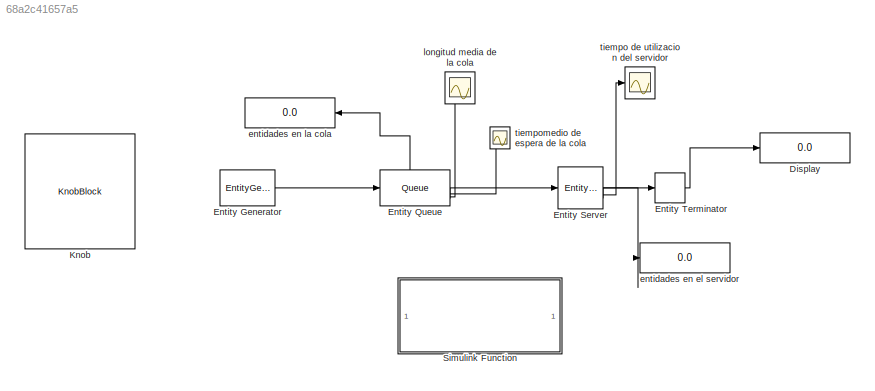
MODEL slx_68a2c41657a5
KIND model
CONFIG AbsTol = auto
CONFIG EnableMultiTasking = off
CONFIG FixedStep = auto
CONFIG MaxStep = auto
CONFIG MinStep = auto
CONFIG RelTol = 1e-3
CONFIG SampleTimeConstraint = Unconstrained
CONFIG SolverName = VariableStepAuto
CONFIG StartTime = 0.0
CONFIG StopTime = 50
BLOCK [Display] Display
  Decimation = 1
BLOCK [EntityGenerator] Entity Generator
  EntityType = Structured
  EntityTypeName = Entity
  IntergenerationTimeAction = dt = llegadaExponencial();
  OutputPortMap = o3
  OutputPortMessageModes = m
  TimeSource = MATLAB action
BLOCK [Queue] Entity Queue
  AverageQueueLength = on
  AverageWait = on
  Capacity = 500
  InputPortMap = u0
  InputPortMessageModes = m
  NumberEntitiesInBlock = on
  OutputPortMap = o1,o2,o3,o5
  OutputPortMessageModes = n,n,n,m
BLOCK [EntityServer] Entity Server
  Capacity = 1
  InputPortMap = u2
  InputPortMessageModes = m
  NumberEntitiesInBlock = on
  OutputPortMap = o1,o5,o9
  OutputPortMessageModes = n,n,m
  ServiceTimeAction = media = 1\ndt = -media*log(1-rand());
  ServiceTimeSource = MATLAB action
  Utilization = on
BLOCK [EntityTerminator] Entity Terminator
  InputPortMap = u0
  InputPortMessageModes = m
  NumberEntitiesArrived = on
  OutputPortMap = o0
BLOCK [KnobBlock] Knob
  ScaleMax = 1
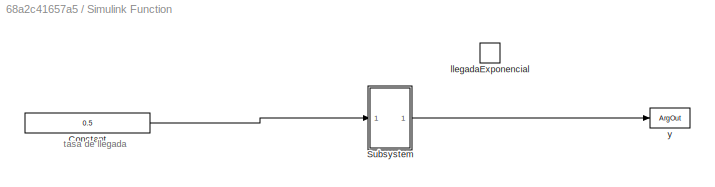
BLOCK [SubSystem] Simulink Function
  TreatAsAtomicUnit = on
BLOCK [Constant] Simulink Function/Constant
  Value = 0.5
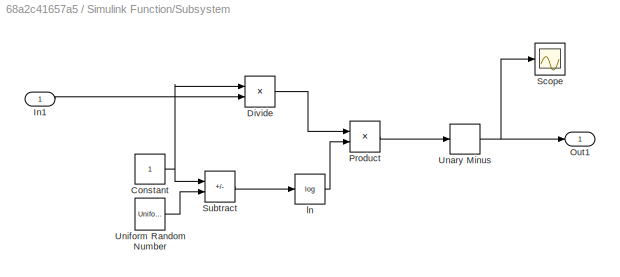
BLOCK [SubSystem] Simulink Function/Subsystem
BLOCK [Constant] Simulink Function/Subsystem/Constant
BLOCK [Product] Simulink Function/Subsystem/Divide
  Inputs = */
BLOCK [Inport] Simulink Function/Subsystem/In1
BLOCK [Outport] Simulink Function/Subsystem/Out1
BLOCK [Product] Simulink Function/Subsystem/Product
BLOCK [Scope] Simulink Function/Subsystem/Scope
  Floating = off
  NumInputPorts = 1
  ScopeSpecificationString = Simulink.scopes.TimeScopeBlockCfg('CurrentConfiguration', extmgr.ConfigurationSet(extmgr.Configuration('Core','General UI',true),extmgr.Configuration('Core','Source UI',true),extmgr.Configuration('Sources','WiredSimulink',true,'DataLoggingVariableName','ScopeData1'),extmgr.Configuration('Visuals','Time Domain',true,'SerializedDisplays',{struct('MinYLimReal','-0.72563','MaxYLimReal','8.02974','YLab...<+1398ch>
BLOCK [Sum] Simulink Function/Subsystem/Subtract
  IconShape = rectangular
  Inputs = +-
BLOCK [UnaryMinus] Simulink Function/Subsystem/Unary Minus
BLOCK [UniformRandomNumber] Simulink Function/Subsystem/Uniform Random Number
  Minimum = 0
  Seed = 12345
BLOCK [Math] Simulink Function/Subsystem/ln
  Operator = log
BLOCK [TriggerPort] Simulink Function/llegadaExponencial
  FunctionName = llegadaExponencial
  IsSimulinkFunction = on
  StatesWhenEnabling = held
  TriggerType = function-call
  VariantControl = (inherit)
BLOCK [ArgOut] Simulink Function/y
  ArgumentName = y
  DisableCoverage = on
BLOCK [Display] entidades en el servidor
  Decimation = 1
BLOCK [Display] entidades en la cola
  Decimation = 1
BLOCK [Scope] longitud media de la cola
  Floating = off
  NumInputPorts = 1
  ScopeSpecificationString = Simulink.scopes.TimeScopeBlockCfg('CurrentConfiguration', extmgr.ConfigurationSet(extmgr.Configuration('Core','General UI',true),extmgr.Configuration('Core','Source UI',true),extmgr.Configuration('Sources','WiredSimulink',true),extmgr.Configuration('Visuals','Time Domain',true,'SerializedDisplays',{struct('MinYLimReal','-0.97433','MaxYLimReal','8.76893','YLabelReal','','MinYLimMag','0.00000','MaxY...<+1334ch>
BLOCK [Scope] tiempo de utilizacion del servidor
  Floating = off
  NumInputPorts = 1
  ScopeSpecificationString = Simulink.scopes.TimeScopeBlockCfg('CurrentConfiguration', extmgr.ConfigurationSet(extmgr.Configuration('Core','General UI',true),extmgr.Configuration('Core','Source UI',true),extmgr.Configuration('Sources','WiredSimulink',true,'DataLoggingVariableName','ScopeData2'),extmgr.Configuration('Visuals','Time Domain',true),extmgr.Configuration('Tools','Plot Navigation',true),extmgr.Configuration('Tools',...<+40ch>
BLOCK [Scope] tiempomedio de espera de la cola
  Floating = off
  NumInputPorts = 1
  ScopeSpecificationString = Simulink.scopes.TimeScopeBlockCfg('CurrentConfiguration', extmgr.ConfigurationSet(extmgr.Configuration('Core','General UI',true),extmgr.Configuration('Core','Source UI',true),extmgr.Configuration('Sources','WiredSimulink',true,'DataLoggingVariableName','ScopeData1'),extmgr.Configuration('Visuals','Time Domain',true,'SerializedDisplays',{struct('MinYLimReal','-1.05585','MaxYLimReal','9.50263','YLab...<+1373ch>
ANNOTATION Simulink Function: tasa de llegada
LINE Entity Generator:1 -> Entity Queue:1
LINE Entity Queue:1 -> entidades en la cola:1
LINE Entity Queue:2 -> tiempomedio de espera de la cola:1
LINE Entity Queue:3 -> longitud media de la cola:1
LINE Entity Queue:4 -> Entity Server:1
LINE Entity Server:1 -> entidades en el servidor:1
LINE Entity Server:2 -> tiempo de utilizacion del servidor:1
LINE Entity Server:3 -> Entity Terminator:1
LINE Entity Terminator:1 -> Display:1
LINE Simulink Function/Constant:1 -> Simulink Function/Subsystem:1
NET Simulink Function/Subsystem/Constant:1 -> Simulink Function/Subsystem/Divide:1, Simulink Function/Subsystem/Subtract:1
LINE Simulink Function/Subsystem/Divide:1 -> Simulink Function/Subsystem/Product:1
LINE Simulink Function/Subsystem/In1:1 -> Simulink Function/Subsystem/Divide:2
LINE Simulink Function/Subsystem/Product:1 -> Simulink Function/Subsystem/Unary Minus:1
LINE Simulink Function/Subsystem/Subtract:1 -> Simulink Function/Subsystem/ln:1
NET Simulink Function/Subsystem/Unary Minus:1 -> Simulink Function/Subsystem/Out1:1, Simulink Function/Subsystem/Scope:1
LINE Simulink Function/Subsystem/Uniform Random Number:1 -> Simulink Function/Subsystem/Subtract:2
LINE Simulink Function/Subsystem/ln:1 -> Simulink Function/Subsystem/Product:2
LINE Simulink Function/Subsystem:1 -> Simulink Function/y:1
note: NET lines group one-source signal fan-out (src -> all destinations, sorted); 1:1 wires keep LINE
